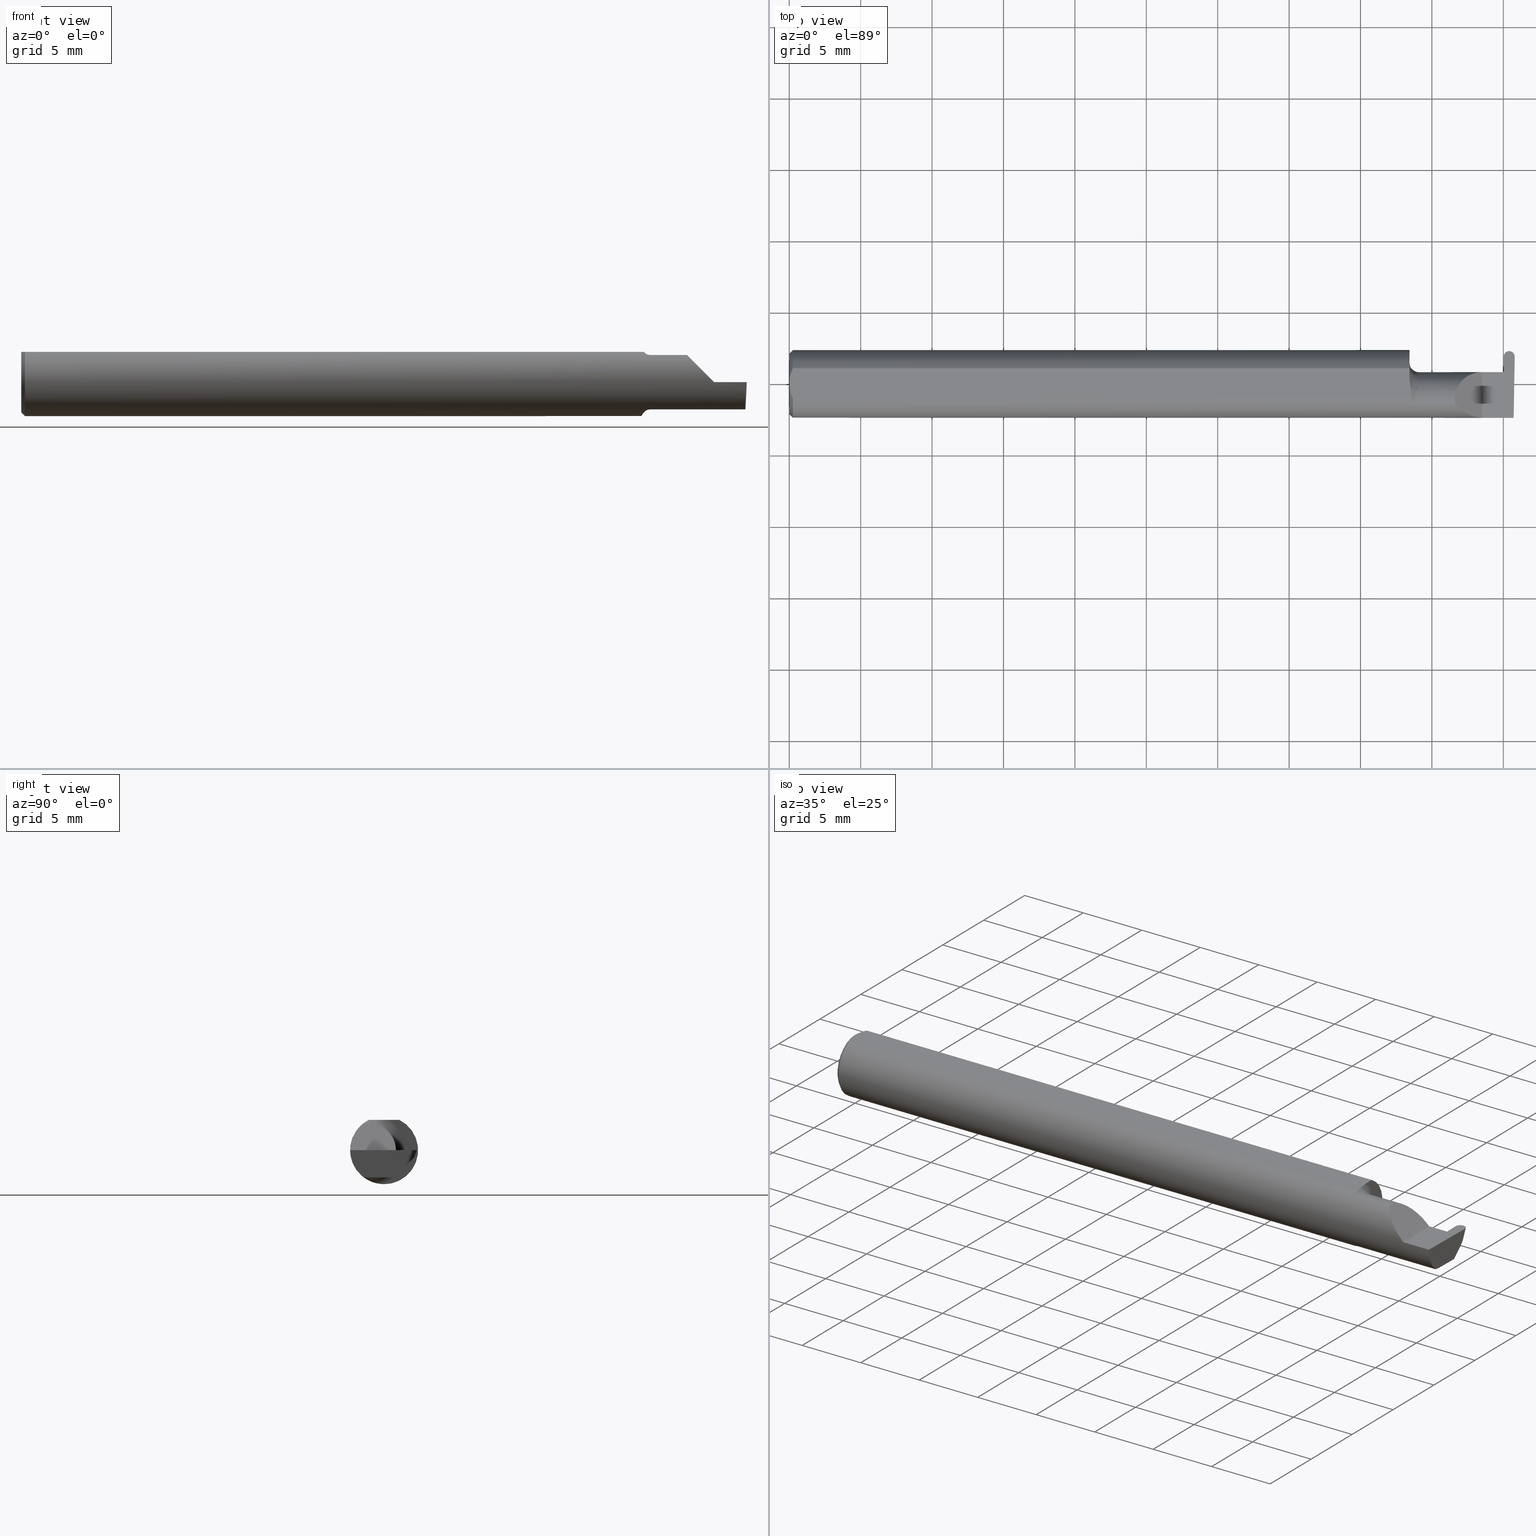
[diagram: canonical four-view strip — front | top / right | iso, engineering-drawing reading convention]
A machine part, canonical four-view strip (front | top / right | iso — engineering-drawing reading convention). The complete STEP part file that produces these views, byte-faithful:
ISO-10303-21;
HEADER;
FILE_DESCRIPTION (( 'STEP AP203' ),
    '1' );
FILE_NAME ('221828-GFR030K-4.STEP',
    '2024-06-17T19:37:32',
    ( '' ),
    ( '' ),
    'SwSTEP 2.0',
    'SolidWorks 2022',
    '' );
FILE_SCHEMA (( 'CONFIG_CONTROL_DESIGN' ));
ENDSEC;

DATA;
#1 = CARTESIAN_POINT ( 'NONE',  ( 1.984528753945016932, 0.09039999999999999425, 0.000000000000000000 ) ) ;
#2 = ORIENTED_EDGE ( 'NONE', *, *, #172, .F. ) ;
#3 = CARTESIAN_POINT ( 'NONE',  ( 1.709999999999999964, 0.04209513035969864037, 0.08359999999999988274 ) ) ;
#4 = CARTESIAN_POINT ( 'NONE',  ( 1.969483699970306922, 0.07409901316683066563, 0.000000000000000000 ) ) ;
#5 = VERTEX_POINT ( 'NONE', #680 ) ;
#6 = ADVANCED_FACE ( 'NONE', ( #462 ), #147, .T. ) ;
#7 = CARTESIAN_POINT ( 'NONE',  ( 1.910000000000000142, 0.03240000000000001906, 3.551475717527338624E-17 ) ) ;
#8 = SECURITY_CLASSIFICATION ( '', '', #171 ) ;
#9 = AXIS2_PLACEMENT_3D ( 'NONE', #264, #501, #282 ) ;
#10 = CARTESIAN_POINT ( 'NONE',  ( 0.01000000000000016674, 0.04209513035969864037, 0.08359999999999988274 ) ) ;
#11 = DIRECTION ( 'NONE',  ( -1.000000000000000000, -0.000000000000000000, -0.000000000000000000 ) ) ;
#12 = LINE ( 'NONE', #328, #589 ) ;
#13 = DIRECTION ( 'NONE',  ( 0.03490480639812536257, 0.000000000000000000, 0.9993906415863165194 ) ) ;
#14 = ORIENTED_EDGE ( 'NONE', *, *, #496, .T. ) ;
#15 = CARTESIAN_POINT ( 'NONE',  ( 0.000000000000000000, -0.04209513035969864037, 0.08359999999999988274 ) ) ;
#16 = CARTESIAN_POINT ( 'NONE',  ( 0.01000000000000016674, -0.04209513035969864037, 0.08359999999999988274 ) ) ;
#17 = EDGE_LOOP ( 'NONE', ( #21, #668, #531, #218 ) ) ;
#18 = CARTESIAN_POINT ( 'NONE',  ( 1.714570820222980574, -0.02392027542784315106, 0.08359999999999992437 ) ) ;
#19 = DIRECTION ( 'NONE',  ( 0.000000000000000000, 0.000000000000000000, 1.000000000000000000 ) ) ;
#20 = VECTOR ( 'NONE', #543, 39.37007874015748143 ) ;
#21 = ORIENTED_EDGE ( 'NONE', *, *, #620, .F. ) ;
#22 = LINE ( 'NONE', #503, #505 ) ;
#23 = DIRECTION ( 'NONE',  ( -0.02596452850600439177, 0.7068683906002057871, 0.7068683906002134476 ) ) ;
#24 = EDGE_CURVE ( 'NONE', #484, #691, #347, .T. ) ;
#25 = PRODUCT_DEFINITION ( 'UNKNOWN', '', #114, #240 ) ;
#26 = EDGE_CURVE ( 'NONE', #207, #250, #613, .T. ) ;
#27 = B_SPLINE_CURVE_WITH_KNOTS ( 'NONE', 3,
 ( #414, #296, #522, #35 ),
 .UNSPECIFIED., .F., .F.,
 ( 4, 4 ),
 ( 0.000000000000000000, 1.000000000000000000 ),
 .UNSPECIFIED. ) ;
#28 = ORIENTED_EDGE ( 'NONE', *, *, #610, .T. ) ;
#29 = DIRECTION ( 'NONE',  ( 0.000000000000000000, -1.000000000000000000, 0.000000000000000000 ) ) ;
#30 = DIRECTION ( 'NONE',  ( 0.000000000000000000, 0.000000000000000000, 1.000000000000000000 ) ) ;
#31 = CARTESIAN_POINT ( 'NONE',  ( 1.716129652885479473, -0.04209513035970119388, 0.08359999999999991049 ) ) ;
#32 = EDGE_LOOP ( 'NONE', ( #276, #62, #189, #657, #96, #672 ) ) ;
#33 = VECTOR ( 'NONE', #679, 39.37007874015748143 ) ;
#34 = CARTESIAN_POINT ( 'NONE',  ( 0.01000000000000016674, 0.000000000000000000, -0.09360000000000001652 ) ) ;
#35 = CARTESIAN_POINT ( 'NONE',  ( 1.964199165186739648, 0.03239999999999999825, 0.000000000000000000 ) ) ;
#36 = CARTESIAN_POINT ( 'NONE',  ( 1.709999999999999964, 0.03239999999999998437, 3.551475717527338624E-17 ) ) ;
#37 = CARTESIAN_POINT ( 'NONE',  ( 1.709999999999999964, 0.03221730376948644947, -0.005231735530814581037 ) ) ;
#38 = VERTEX_POINT ( 'NONE', #403 ) ;
#39 = CARTESIAN_POINT ( 'NONE',  ( 1.972792175482094290, 0.02986403519928995665, -0.07262053034965132436 ) ) ;
#40 = VERTEX_POINT ( 'NONE', #527 ) ;
#41 = ADVANCED_FACE ( 'NONE', ( #200 ), #408, .F. ) ;
#42 = APPROVAL_PERSON_ORGANIZATION ( #319, #625, #428 ) ;
#43 = ORIENTED_EDGE ( 'NONE', *, *, #101, .T. ) ;
#44 = AXIS2_PLACEMENT_3D ( 'NONE', #406, #628, #617 ) ;
#45 =( BOUNDED_CURVE ( )  B_SPLINE_CURVE ( 3, ( #298, #252, #413, #194 ),
 .UNSPECIFIED., .F., .T. ) 
 B_SPLINE_CURVE_WITH_KNOTS ( ( 4, 4 ),
 ( 1.672436806532649367, 3.247686724355375087 ),
 .UNSPECIFIED. ) 
 CURVE ( )  GEOMETRIC_REPRESENTATION_ITEM ( )  RATIONAL_B_SPLINE_CURVE ( ( 1.000000000000000000, 0.8036869647627066238, 0.8036869647627066238, 1.000000000000000000 ) ) 
 REPRESENTATION_ITEM ( '' )  );
#46 = APPROVAL_PERSON_ORGANIZATION ( #108, #592, #678 ) ;
#47 = CARTESIAN_POINT ( 'NONE',  ( 1.984733980000000342, 0.08346613280634004872, -0.01901843274260211006 ) ) ;
#48 = APPROVAL_STATUS ( 'not_yet_approved' ) ;
#49 = ORIENTED_EDGE ( 'NONE', *, *, #213, .F. ) ;
#50 = DIRECTION ( 'NONE',  ( 0.03547001781079536092, 0.000000000000000000, -0.9993707409347653003 ) ) ;
#51 = APPROVAL_STATUS ( 'not_yet_approved' ) ;
#52 = ORIENTED_EDGE ( 'NONE', *, *, #656, .T. ) ;
#53 = CARTESIAN_POINT ( 'NONE',  ( 1.711762116932663558, -0.02818790137206256263, -0.08941930521177116065 ) ) ;
#54 = EDGE_LOOP ( 'NONE', ( #178, #312, #138, #163 ) ) ;
#55 = CONICAL_SURFACE ( 'NONE', #507, 0.08359999999999989662, 0.7853981633974458365 ) ;
#56 = CARTESIAN_POINT ( 'NONE',  ( 1.734999999999999876, -0.04260000000000008225, 0.000000000000000000 ) ) ;
#57 = CARTESIAN_POINT ( 'NONE',  ( 1.854690286057537163, -0.08092595952420827965, 0.05530971394246238931 ) ) ;
#58 = ORIENTED_EDGE ( 'NONE', *, *, #119, .T. ) ;
#59 = PLANE ( 'NONE',  #557 ) ;
#60 = CARTESIAN_POINT ( 'NONE',  ( 1.970563718872777370, 0.07240713412461576015, -0.03007743142432650965 ) ) ;
#61 = ORIENTED_EDGE ( 'NONE', *, *, #351, .F. ) ;
#62 = ORIENTED_EDGE ( 'NONE', *, *, #351, .T. ) ;
#63 = EDGE_CURVE ( 'NONE', #541, #618, #140, .T. ) ;
#64 = CARTESIAN_POINT ( 'NONE',  ( 1.995327814509989528, -0.04259999999999948550, -0.07500000000000002498 ) ) ;
#65 = TOROIDAL_SURFACE ( 'NONE', #222, 0.1000000000000000472, 0.02499999999999993894 ) ;
#66 = LINE ( 'NONE', #553, #169 ) ;
#67 = ADVANCED_FACE ( 'NONE', ( #85 ), #353, .T. ) ;
#68 = EDGE_LOOP ( 'NONE', ( #98, #49, #487 ) ) ;
#69 = B_SPLINE_CURVE_WITH_KNOTS ( 'NONE', 3,
 ( #228, #596, #608, #402, #652, #286 ),
 .UNSPECIFIED., .F., .F.,
 ( 4, 2, 4 ),
 ( 0.001744210492668864416, 0.002295110172257193264, 0.002846009851845522111 ),
 .UNSPECIFIED. ) ;
#70 = FACE_OUTER_BOUND ( 'NONE', #666, .T. ) ;
#71 = DIRECTION ( 'NONE',  ( -0.9992386149554827179, 0.01744177490282298668, 0.03489949670250104552 ) ) ;
#72 = ORIENTED_EDGE ( 'NONE', *, *, #690, .T. ) ;
#73 = DIRECTION ( 'NONE',  ( 1.000000000000000000, 0.000000000000000000, -0.000000000000000000 ) ) ;
#74 = CARTESIAN_POINT ( 'NONE',  ( 1.971325961646301028, 0.05785528259492387498, -0.04462928295401853707 ) ) ;
#75 = B_SPLINE_CURVE_WITH_KNOTS ( 'NONE', 3,
 ( #339, #274, #18, #270, #449, #231 ),
 .UNSPECIFIED., .F., .F.,
 ( 4, 2, 4 ),
 ( 0.009672910729349544143, 0.01035804079918431486, 0.01104317086901908385 ),
 .UNSPECIFIED. ) ;
#76 = VECTOR ( 'NONE', #293, 39.37007874015748143 ) ;
#77 = VERTEX_POINT ( 'NONE', #564 ) ;
#78 = CARTESIAN_POINT ( 'NONE',  ( 0.004072204388638868758, -0.02891446873729324601, 0.08359999999999991049 ) ) ;
#79 = CARTESIAN_POINT ( 'NONE',  ( 1.981547166899400025, 0.1166894773727292917, 0.07222974545083693521 ) ) ;
#80 = VECTOR ( 'NONE', #174, 39.37007874015748854 ) ;
#81 = EDGE_CURVE ( 'NONE', #38, #535, #87, .T. ) ;
#82 = EDGE_CURVE ( 'NONE', #425, #248, #242, .T. ) ;
#83 = ORIENTED_EDGE ( 'NONE', *, *, #656, .F. ) ;
#84 = CARTESIAN_POINT ( 'NONE',  ( 1.970397471987413995, 0.03221730376948542252, -0.005231735530809524318 ) ) ;
#85 = FACE_OUTER_BOUND ( 'NONE', #321, .T. ) ;
#86 = DIRECTION ( 'NONE',  ( -0.01745240643727633684, -0.9998476951563912696, 0.000000000000000000 ) ) ;
#87 = LINE ( 'NONE', #197, #660 ) ;
#88 = CARTESIAN_POINT ( 'NONE',  ( 1.726308147845286634, -0.05549979236676332722, 0.07538081185522389760 ) ) ;
#89 = LINE ( 'NONE', #246, #415 ) ;
#90 = AXIS2_PLACEMENT_3D ( 'NONE', #121, #600, #444 ) ;
#91 = APPROVAL_ROLE ( '' ) ;
#92 = DIRECTION ( 'NONE',  ( -0.03549161113179509497, 0.03487750912278161919, 0.9987611851171729338 ) ) ;
#93 = VERTEX_POINT ( 'NONE', #566 ) ;
#94 = EDGE_CURVE ( 'NONE', #691, #210, #27, .T. ) ;
#95 = CARTESIAN_POINT ( 'NONE',  ( 1.996551145152111628, 0.02748456554894272708, -0.07500000000000002498 ) ) ;
#96 = ORIENTED_EDGE ( 'NONE', *, *, #204, .T. ) ;
#97 = MECHANICAL_CONTEXT ( 'NONE', #602, 'mechanical' ) ;
#98 = ORIENTED_EDGE ( 'NONE', *, *, #217, .F. ) ;
#99 = AXIS2_PLACEMENT_3D ( 'NONE', #257, #299, #693 ) ;
#100 = CARTESIAN_POINT ( 'NONE',  ( 1.995165152206654691, -0.05300374992736034407, -0.07445783144524581454 ) ) ;
#101 = EDGE_CURVE ( 'NONE', #618, #258, #89, .T. ) ;
#102 = EDGE_CURVE ( 'NONE', #345, #570, #624, .T. ) ;
#103 = PERSON_AND_ORGANIZATION ( #423, #137 ) ;
#104 = EDGE_LOOP ( 'NONE', ( #499, #133, #459, #419 ) ) ;
#105 = DIRECTION ( 'NONE',  ( -1.000000000000000000, 0.000000000000000000, 1.224646799147358877E-16 ) ) ;
#106 = DIRECTION ( 'NONE',  ( 0.000000000000000000, 0.000000000000000000, 1.000000000000000000 ) ) ;
#107 = CARTESIAN_POINT ( 'NONE',  ( 1.734999999999999876, -0.05810704225352095881, -0.07337936794867842838 ) ) ;
#108 = PERSON_AND_ORGANIZATION ( #423, #137 ) ;
#109 = ORIENTED_EDGE ( 'NONE', *, *, #221, .F. ) ;
#110 = DIRECTION ( 'NONE',  ( -1.000000000000000000, -0.000000000000000000, -0.000000000000000000 ) ) ;
#111 = ORIENTED_EDGE ( 'NONE', *, *, #101, .F. ) ;
#112 = DIRECTION ( 'NONE',  ( 0.000000000000000000, -1.000000000000000000, 0.000000000000000000 ) ) ;
#113 = CALENDAR_DATE ( 2024, 17, 6 ) ;
#114 = PRODUCT_DEFINITION_FORMATION_WITH_SPECIFIED_SOURCE ( 'ANY', '', #463, .NOT_KNOWN. ) ;
#115 = EDGE_LOOP ( 'NONE', ( #61, #661, #641, #111, #363 ) ) ;
#116 = CIRCLE ( 'NONE', #9, 0.09360000000000001652 ) ;
#117 =( GEOMETRIC_REPRESENTATION_CONTEXT ( 3 ) GLOBAL_UNCERTAINTY_ASSIGNED_CONTEXT ( ( #565 ) ) GLOBAL_UNIT_ASSIGNED_CONTEXT ( ( #192, #451, #606 ) ) REPRESENTATION_CONTEXT ( 'NONE', 'WORKASPACE' ) );
#118 = CARTESIAN_POINT ( 'NONE',  ( 1.858433946715231766, 0.03240000000000000518, 0.05156605328476855654 ) ) ;
#119 = EDGE_CURVE ( 'NONE', #266, #160, #358, .T. ) ;
#120 = CARTESIAN_POINT ( 'NONE',  ( -3.937007874019685528E-05, 0.02748456554894273055, -0.07500000000000002498 ) ) ;
#121 = CARTESIAN_POINT ( 'NONE',  ( 0.000000000000000000, 0.000000000000000000, 0.000000000000000000 ) ) ;
#122 = APPROVAL_DATE_TIME ( #584, #625 ) ;
#123 = LINE ( 'NONE', #120, #20 ) ;
#124 = DIRECTION ( 'NONE',  ( 0.000000000000000000, 0.000000000000000000, -1.000000000000000000 ) ) ;
#125 = ORIENTED_EDGE ( 'NONE', *, *, #323, .T. ) ;
#126 = AXIS2_PLACEMENT_3D ( 'NONE', #609, #343, #556 ) ;
#127 = CYLINDRICAL_SURFACE ( 'NONE', #310, 0.01524999999999999793 ) ;
#128 = FACE_OUTER_BOUND ( 'NONE', #32, .T. ) ;
#129 = ORIENTED_EDGE ( 'NONE', *, *, #546, .T. ) ;
#130 = DIRECTION ( 'NONE',  ( 1.645101957906638708E-16, -1.000000000000000000, 0.000000000000000000 ) ) ;
#131 = DIRECTION ( 'NONE',  ( 7.095197676277282976E-16, -0.9993908270190957621, 0.03489949670250104552 ) ) ;
#132 = CC_DESIGN_DATE_AND_TIME_ASSIGNMENT ( #481, #209, ( #25 ) ) ;
#133 = ORIENTED_EDGE ( 'NONE', *, *, #620, .T. ) ;
#134 = EDGE_CURVE ( 'NONE', #38, #334, #638, .T. ) ;
#135 = DIRECTION ( 'NONE',  ( -0.03876062227022336604, -0.3417631236437465025, -0.9389864650134710500 ) ) ;
#136 = DIRECTION ( 'NONE',  ( -0.03701368837992437266, -0.7066222423871552083, -0.7066222423871628688 ) ) ;
#137 = ORGANIZATION ( 'UNSPECIFIED', 'UNSPECIFIED', '' ) ;
#138 = ORIENTED_EDGE ( 'NONE', *, *, #323, .F. ) ;
#139 = PLANE ( 'NONE',  #141 ) ;
#140 = LINE ( 'NONE', #562, #452 ) ;
#141 = AXIS2_PLACEMENT_3D ( 'NONE', #561, #289, #245 ) ;
#142 =( BOUNDED_CURVE ( )  B_SPLINE_CURVE ( 3, ( #155, #100, #534, #486 ),
 .UNSPECIFIED., .F., .T. ) 
 B_SPLINE_CURVE_WITH_KNOTS ( ( 4, 4 ),
 ( 0.2552020043920822379, 0.4634648172053437154 ),
 .UNSPECIFIED. ) 
 CURVE ( )  GEOMETRIC_REPRESENTATION_ITEM ( )  RATIONAL_B_SPLINE_CURVE ( ( 1.000000000000000000, 0.9963888149483992596, 0.9963888149483992596, 1.000000000000000000 ) ) 
 REPRESENTATION_ITEM ( '' )  );
#143 = CARTESIAN_POINT ( 'NONE',  ( 0.000000000000000000, 0.000000000000000000, 0.08359999999999991049 ) ) ;
#144 = DIRECTION ( 'NONE',  ( 1.000000000000000000, -0.000000000000000000, -0.000000000000000000 ) ) ;
#145 = EDGE_CURVE ( 'NONE', #373, #5, #371, .T. ) ;
#146 = DIRECTION ( 'NONE',  ( 1.000000000000000000, 1.645101957906638708E-16, 0.000000000000000000 ) ) ;
#147 = PLANE ( 'NONE',  #263 ) ;
#148 = VECTOR ( 'NONE', #674, 39.37007874015748143 ) ;
#149 = VERTEX_POINT ( 'NONE', #372 ) ;
#150 = CARTESIAN_POINT ( 'NONE',  ( 1.717870098798738088, -0.04602557371825105603, 0.08162090280442951817 ) ) ;
#151 = ORIENTED_EDGE ( 'NONE', *, *, #442, .F. ) ;
#152 = ADVANCED_FACE ( 'NONE', ( #162 ), #381, .F. ) ;
#153 = CC_DESIGN_PERSON_AND_ORGANIZATION_ASSIGNMENT ( #103, #311, ( #463 ) ) ;
#154 = EDGE_CURVE ( 'NONE', #570, #93, #645, .T. ) ;
#155 = CARTESIAN_POINT ( 'NONE',  ( 1.995113740419715231, -0.05810704225352097962, -0.07337936794867837287 ) ) ;
#156 = ORIENTED_EDGE ( 'NONE', *, *, #516, .F. ) ;
#157 = LINE ( 'NONE', #536, #475 ) ;
#158 = DIRECTION ( 'NONE',  ( -1.000000000000000000, -1.645101957906638708E-16, -0.000000000000000000 ) ) ;
#159 = CARTESIAN_POINT ( 'NONE',  ( 1.970211558952576159, 0.03239999999999999825, 0.000000000000000000 ) ) ;
#160 = VERTEX_POINT ( 'NONE', #580 ) ;
#161 = AXIS2_PLACEMENT_3D ( 'NONE', #417, #411, #467 ) ;
#162 = FACE_OUTER_BOUND ( 'NONE', #54, .T. ) ;
#163 = ORIENTED_EDGE ( 'NONE', *, *, #154, .F. ) ;
#164 = CARTESIAN_POINT ( 'NONE',  ( 1.712856118429613828, -0.03323074941465632010, -0.08766015375840498225 ) ) ;
#165 = EDGE_LOOP ( 'NONE', ( #430, #361, #453, #474, #365, #525, #260, #156, #477, #577 ) ) ;
#166 = DIRECTION ( 'NONE',  ( -0.001239419280281404273, 0.9999992319196288060, 0.000000000000000000 ) ) ;
#167 = AXIS2_PLACEMENT_3D ( 'NONE', #238, #676, #461 ) ;
#168 = EDGE_CURVE ( 'NONE', #210, #40, #214, .T. ) ;
#169 = VECTOR ( 'NONE', #136, 39.37007874015748143 ) ;
#170 = DIRECTION ( 'NONE',  ( 0.000000000000000000, -0.03489949670250104552, -0.9993908270190957621 ) ) ;
#171 = SECURITY_CLASSIFICATION_LEVEL ( 'unclassified' ) ;
#172 = EDGE_CURVE ( 'NONE', #541, #304, #643, .T. ) ;
#173 = DIRECTION ( 'NONE',  ( -0.000000000000000000, 1.000000000000000000, -0.000000000000000000 ) ) ;
#174 = DIRECTION ( 'NONE',  ( -0.03876062227022340073, 0.3417631236437465025, 0.9389864650134709390 ) ) ;
#175 = PLANE ( 'NONE',  #615 ) ;
#176 = FACE_OUTER_BOUND ( 'NONE', #68, .T. ) ;
#177 = B_SPLINE_CURVE_WITH_KNOTS ( 'NONE', 3,
 ( #107, #542, #576, #256, #582, #483, #268, #164, #53, #480, #435, #261 ),
 .UNSPECIFIED., .F., .F.,
 ( 4, 2, 2, 2, 2, 4 ),
 ( 1.968126669309073504E-07, 0.0002104342718631984689, 0.0004206717310594660676, 0.0008411466494520005062, 0.001261621567844535162, 0.001682096486237069600 ),
 .UNSPECIFIED. ) ;
#178 = ORIENTED_EDGE ( 'NONE', *, *, #516, .T. ) ;
#179 = CARTESIAN_POINT ( 'NONE',  ( 1.734999999999999876, -0.04260000000000008225, 0.000000000000000000 ) ) ;
#180 = PLANE ( 'NONE',  #391 ) ;
#181 = ORIENTED_EDGE ( 'NONE', *, *, #386, .T. ) ;
#182 = DIRECTION ( 'NONE',  ( 0.000000000000000000, 0.9396926207859083169, -0.3420201433256689350 ) ) ;
#183 = FACE_OUTER_BOUND ( 'NONE', #17, .T. ) ;
#184 = ORIENTED_EDGE ( 'NONE', *, *, #134, .T. ) ;
#185 = DIRECTION ( 'NONE',  ( 0.03876062227022340767, -0.3417631236437464470, -0.9389864650134710500 ) ) ;
#186 = DIRECTION ( 'NONE',  ( 1.000000000000000000, 0.000000000000000000, -0.000000000000000000 ) ) ;
#187 =( LENGTH_UNIT ( ) NAMED_UNIT ( * ) SI_UNIT ( $, .METRE. ) );
#188 = EDGE_CURVE ( 'NONE', #248, #266, #432, .T. ) ;
#189 = ORIENTED_EDGE ( 'NONE', *, *, #442, .T. ) ;
#190 = CARTESIAN_POINT ( 'NONE',  ( 1.970211558952576159, 0.03239999999999999825, 0.000000000000000000 ) ) ;
#191 = ORIENTED_EDGE ( 'NONE', *, *, #670, .F. ) ;
#192 =( CONVERSION_BASED_UNIT ( 'INCH', #512 ) LENGTH_UNIT ( ) NAMED_UNIT ( #348 ) );
#193 = EDGE_CURVE ( 'NONE', #250, #334, #177, .T. ) ;
#194 = CARTESIAN_POINT ( 'NONE',  ( 1.984939206054983751, 0.09039999999999999425, 0.000000000000000000 ) ) ;
#195 = DIRECTION ( 'NONE',  ( -0.03701368837992446981, 0.7066222423871552083, 0.7066222423871628688 ) ) ;
#196 = DIRECTION ( 'NONE',  ( -1.000000000000000000, -1.645101957906638708E-16, -0.000000000000000000 ) ) ;
#197 = CARTESIAN_POINT ( 'NONE',  ( 1.709999999999999964, 0.09359999999999997489, 0.08359999999999991049 ) ) ;
#198 = CIRCLE ( 'NONE', #684, 0.09360000000000001652 ) ;
#199 = FACE_OUTER_BOUND ( 'NONE', #104, .T. ) ;
#200 = FACE_OUTER_BOUND ( 'NONE', #280, .T. ) ;
#201 = VECTOR ( 'NONE', #275, 39.37007874015748143 ) ;
#202 = DATE_AND_TIME ( #634, #380 ) ;
#203 = ORIENTED_EDGE ( 'NONE', *, *, #249, .T. ) ;
#204 = EDGE_CURVE ( 'NONE', #207, #345, #142, .T. ) ;
#205 = CYLINDRICAL_SURFACE ( 'NONE', #465, 0.07500000000000006661 ) ;
#206 = MANIFOLD_SOLID_BREP ( 'Radii', #426 ) ;
#207 = VERTEX_POINT ( 'NONE', #313 ) ;
#208 = DIRECTION ( 'NONE',  ( -0.01745240643727647215, 0.9998476951563912696, -0.000000000000000000 ) ) ;
#209 = DATE_TIME_ROLE ( 'creation_date' ) ;
#210 = VERTEX_POINT ( 'NONE', #692 ) ;
#211 = CARTESIAN_POINT ( 'NONE',  ( 1.836620632051321200, -0.05810704225352119473, 0.07337936794867828960 ) ) ;
#212 = ORIENTED_EDGE ( 'NONE', *, *, #269, .F. ) ;
#213 = EDGE_CURVE ( 'NONE', #698, #77, #586, .T. ) ;
#214 = LINE ( 'NONE', #159, #320 ) ;
#215 = PERSON_AND_ORGANIZATION_ROLE ( 'classification_officer' ) ;
#216 = ORIENTED_EDGE ( 'NONE', *, *, #102, .T. ) ;
#217 = EDGE_CURVE ( 'NONE', #77, #288, #669, .T. ) ;
#218 = ORIENTED_EDGE ( 'NONE', *, *, #366, .F. ) ;
#219 = CARTESIAN_POINT ( 'NONE',  ( 1.836620632051321200, -0.05810704225352119473, 0.07337936794867828960 ) ) ;
#220 = CC_DESIGN_APPROVAL ( #571, ( #114 ) ) ;
#221 = EDGE_CURVE ( 'NONE', #334, #535, #116, .T. ) ;
#222 = AXIS2_PLACEMENT_3D ( 'NONE', #179, #443, #130 ) ;
#223 = ADVANCED_FACE ( 'NONE', ( #183 ), #55, .T. ) ;
#224 = DIRECTION ( 'NONE',  ( 0.03876062227022335910, 0.3417631236437464470, 0.9389864650134710500 ) ) ;
#225 = CYLINDRICAL_SURFACE ( 'NONE', #251, 0.01524999999999999793 ) ;
#226 = CARTESIAN_POINT ( 'NONE',  ( 1.709999999999999964, -0.006757276995305152960, -0.09335576686851605743 ) ) ;
#227 = ORIENTED_EDGE ( 'NONE', *, *, #168, .T. ) ;
#228 = CARTESIAN_POINT ( 'NONE',  ( 0.000000000000000000, 0.000000000000000000, 0.08359999999999991049 ) ) ;
#229 = CYLINDRICAL_SURFACE ( 'NONE', #253, 0.09360000000000001652 ) ;
#230 = ORIENTED_EDGE ( 'NONE', *, *, #82, .F. ) ;
#231 = CARTESIAN_POINT ( 'NONE',  ( 1.709999999999999964, 0.01227294415283377085, 0.08359999999999991049 ) ) ;
#232 = LINE ( 'NONE', #79, #80 ) ;
#233 = ORIENTED_EDGE ( 'NONE', *, *, #26, .F. ) ;
#234 = FACE_OUTER_BOUND ( 'NONE', #115, .T. ) ;
#235 = CARTESIAN_POINT ( 'NONE',  ( 1.999994460970140109, 0.07418895767924950368, 0.0002471205168746652800 ) ) ;
#236 = ADVANCED_FACE ( 'NONE', ( #446 ), #180, .F. ) ;
#237 = VERTEX_POINT ( 'NONE', #16 ) ;
#238 = CARTESIAN_POINT ( 'NONE',  ( 0.000000000000000000, 0.000000000000000000, 0.000000000000000000 ) ) ;
#239 = DIRECTION ( 'NONE',  ( 1.000000000000000000, 1.645101957906638708E-16, 0.000000000000000000 ) ) ;
#240 = DESIGN_CONTEXT ( 'detailed design', #429, 'design' ) ;
#241 = LINE ( 'NONE', #521, #495 ) ;
#242 = LINE ( 'NONE', #677, #601 ) ;
#243 = AXIS2_PLACEMENT_3D ( 'NONE', #515, #239, #356 ) ;
#244 = CALENDAR_DATE ( 2024, 17, 6 ) ;
#245 = DIRECTION ( 'NONE',  ( 0.03490480639812536257, 0.000000000000000000, -0.9993906415863165194 ) ) ;
#246 = CARTESIAN_POINT ( 'NONE',  ( 1.981957002351929287, 0.06410508538814199686, -0.07224468414256721149 ) ) ;
#247 = FACE_OUTER_BOUND ( 'NONE', #482, .T. ) ;
#248 = VERTEX_POINT ( 'NONE', #74 ) ;
#249 = EDGE_CURVE ( 'NONE', #535, #631, #450, .T. ) ;
#250 = VERTEX_POINT ( 'NONE', #504 ) ;
#251 = AXIS2_PLACEMENT_3D ( 'NONE', #500, #135, #182 ) ;
#252 = CARTESIAN_POINT ( 'NONE',  ( 2.000150782537319483, 0.08363908123938845751, -1.889248031255481802E-18 ) ) ;
#253 = AXIS2_PLACEMENT_3D ( 'NONE', #650, #11, #19 ) ;
#254 = ORIENTED_EDGE ( 'NONE', *, *, #399, .T. ) ;
#255 = DIRECTION ( 'NONE',  ( -1.224646799147358877E-16, 0.000000000000000000, -1.000000000000000000 ) ) ;
#256 = CARTESIAN_POINT ( 'NONE',  ( 1.725047675231717204, -0.05464443219068141483, -0.07601042893068211959 ) ) ;
#257 = CARTESIAN_POINT ( 'NONE',  ( 0.000000000000000000, 0.000000000000000000, 0.000000000000000000 ) ) ;
#258 = VERTEX_POINT ( 'NONE', #498 ) ;
#259 = CARTESIAN_POINT ( 'NONE',  ( 0.000000000000000000, 0.000000000000000000, 0.000000000000000000 ) ) ;
#260 = ORIENTED_EDGE ( 'NONE', *, *, #24, .F. ) ;
#261 = CARTESIAN_POINT ( 'NONE',  ( 1.709999999999999964, -0.006757276995305152960, -0.09335576686851605743 ) ) ;
#262 = ORIENTED_EDGE ( 'NONE', *, *, #401, .F. ) ;
#263 = AXIS2_PLACEMENT_3D ( 'NONE', #569, #30, #186 ) ;
#264 = CARTESIAN_POINT ( 'NONE',  ( 1.709999999999999964, 0.000000000000000000, 0.000000000000000000 ) ) ;
#265 = SHAPE_DEFINITION_REPRESENTATION ( #671, #640 ) ;
#266 = VERTEX_POINT ( 'NONE', #544 ) ;
#267 = ORIENTED_EDGE ( 'NONE', *, *, #188, .T. ) ;
#268 = CARTESIAN_POINT ( 'NONE',  ( 1.716206319820904991, -0.04283575577410217439, -0.08338874798717361980 ) ) ;
#269 = EDGE_CURVE ( 'NONE', #258, #541, #232, .T. ) ;
#270 = CARTESIAN_POINT ( 'NONE',  ( 1.711463898467977307, -0.005727447913487191365, 0.08359999999999991049 ) ) ;
#271 = CARTESIAN_POINT ( 'NONE',  ( 1.999997674911211609, 0.07486755121428030624, 0.000000000000000000 ) ) ;
#272 = CC_DESIGN_APPROVAL ( #592, ( #25 ) ) ;
#273 = VECTOR ( 'NONE', #146, 39.37007874015748143 ) ;
#274 = CARTESIAN_POINT ( 'NONE',  ( 1.716082007218903582, -0.03301619840524120525, 0.08359999999999991049 ) ) ;
#275 = DIRECTION ( 'NONE',  ( -1.000000000000000000, -0.000000000000000000, -0.000000000000000000 ) ) ;
#276 = ORIENTED_EDGE ( 'NONE', *, *, #324, .F. ) ;
#277 = CARTESIAN_POINT ( 'NONE',  ( 1.972966441847108232, -0.04260000000000003367, -0.07500000000000003886 ) ) ;
#278 = DIRECTION ( 'NONE',  ( -0.01745240643727633684, -0.9998476951563912696, 0.000000000000000000 ) ) ;
#279 = EDGE_CURVE ( 'NONE', #258, #266, #662, .T. ) ;
#280 = EDGE_LOOP ( 'NONE', ( #327, #267, #58, #648, #642, #125 ) ) ;
#281 = CARTESIAN_POINT ( 'NONE',  ( 1.984939206054983751, 0.09039999999999999425, 0.000000000000000000 ) ) ;
#282 = DIRECTION ( 'NONE',  ( 0.000000000000000000, 1.000000000000000000, 0.000000000000000000 ) ) ;
#283 = AXIS2_PLACEMENT_3D ( 'NONE', #306, #255, #105 ) ;
#284 = VERTEX_POINT ( 'NONE', #340 ) ;
#285 = ADVANCED_FACE ( 'NONE', ( #594 ), #551, .F. ) ;
#286 = CARTESIAN_POINT ( 'NONE',  ( 0.01000000000000016674, 0.04209513035969864037, 0.08359999999999988274 ) ) ;
#287 = CARTESIAN_POINT ( 'NONE',  ( 1.984733980000000342, 0.08346613280634004872, -0.01901843274260211006 ) ) ;
#288 = VERTEX_POINT ( 'NONE', #597 ) ;
#289 = DIRECTION ( 'NONE',  ( 0.9992386149554827179, 0.01744177490282312198, 0.03489949670250104552 ) ) ;
#290 = ORIENTED_EDGE ( 'NONE', *, *, #366, .T. ) ;
#291 = CARTESIAN_POINT ( 'NONE',  ( 2.115884466375952844, -0.04259999999999948550, -0.07500000000000002498 ) ) ;
#292 = ADVANCED_FACE ( 'NONE', ( #128 ), #494, .F. ) ;
#293 = DIRECTION ( 'NONE',  ( -0.03549161113179509497, 0.03487750912278161919, 0.9987611851171729338 ) ) ;
#294 = DIRECTION ( 'NONE',  ( -1.645101957906638708E-16, 1.000000000000000000, 0.000000000000000000 ) ) ;
#295 = CARTESIAN_POINT ( 'NONE',  ( 2.999519565323742037E-32, -0.09359999999999998876, 2.449293598294716768E-16 ) ) ;
#296 = CARTESIAN_POINT ( 'NONE',  ( 1.964077367699730736, 0.03227820251299117621, -0.003487823687207102126 ) ) ;
#297 = CC_DESIGN_DATE_AND_TIME_ASSIGNMENT ( #651, #385, ( #8 ) ) ;
#298 = CARTESIAN_POINT ( 'NONE',  ( 1.999984260029693539, 0.07409901316683065176, 0.000000000000000000 ) ) ;
#299 = DIRECTION ( 'NONE',  ( 0.000000000000000000, 0.000000000000000000, 1.000000000000000000 ) ) ;
#300 = ORIENTED_EDGE ( 'NONE', *, *, #665, .F. ) ;
#301 = CARTESIAN_POINT ( 'NONE',  ( 1.732603832840145408, -0.05810704225352093799, 0.07337936794867844226 ) ) ;
#302 = ORIENTED_EDGE ( 'NONE', *, *, #530, .T. ) ;
#303 = PERSON_AND_ORGANIZATION ( #423, #137 ) ;
#304 = VERTEX_POINT ( 'NONE', #329 ) ;
#305 = VECTOR ( 'NONE', #663, 39.37007874015748143 ) ;
#306 = CARTESIAN_POINT ( 'NONE',  ( 2.000000000000000000, -0.2500000000000000555, 0.000000000000000000 ) ) ;
#307 = EDGE_CURVE ( 'NONE', #392, #345, #664, .T. ) ;
#308 = VECTOR ( 'NONE', #472, 39.37007874015748143 ) ;
#309 = DIRECTION ( 'NONE',  ( -1.000000000000000000, -1.645101957906638708E-16, -0.000000000000000000 ) ) ;
#310 = AXIS2_PLACEMENT_3D ( 'NONE', #447, #354, #464 ) ;
#311 = PERSON_AND_ORGANIZATION_ROLE ( 'design_owner' ) ;
#312 = ORIENTED_EDGE ( 'NONE', *, *, #379, .F. ) ;
#313 = CARTESIAN_POINT ( 'NONE',  ( 1.995113740419715231, -0.05810704225352097962, -0.07337936794867837287 ) ) ;
#314 = PERSON_AND_ORGANIZATION_ROLE ( 'creator' ) ;
#315 = ORIENTED_EDGE ( 'NONE', *, *, #154, .T. ) ;
#316 = CARTESIAN_POINT ( 'NONE',  ( 1.976063894922528208, 0.08291310012426172937, -0.01957146542468043635 ) ) ;
#317 = PERSON_AND_ORGANIZATION_ROLE ( 'creator' ) ;
#318 = ORIENTED_EDGE ( 'NONE', *, *, #188, .F. ) ;
#319 = PERSON_AND_ORGANIZATION ( #423, #137 ) ;
#320 = VECTOR ( 'NONE', #427, 39.37007874015748143 ) ;
#321 = EDGE_LOOP ( 'NONE', ( #611, #436, #184 ) ) ;
#322 = B_SPLINE_CURVE_WITH_KNOTS ( 'NONE', 3,
 ( #31, #150, #362, #468, #88, #346, #301, #526 ),
 .UNSPECIFIED., .F., .F.,
 ( 4, 2, 2, 4 ),
 ( 4.741820243502701581E-07, 0.0003579866703973726767, 0.0005367429145838903837, 0.0007154991587704082534 ),
 .UNSPECIFIED. ) ;
#323 = EDGE_CURVE ( 'NONE', #93, #425, #659, .T. ) ;
#324 = EDGE_CURVE ( 'NONE', #160, #392, #66, .T. ) ;
#325 = CARTESIAN_POINT ( 'NONE',  ( 1.993404065077472476, 0.08291310012426146570, -0.01957146542468068962 ) ) ;
#326 = COORDINATED_UNIVERSAL_TIME_OFFSET ( 8, 0, .BEHIND. ) ;
#327 = ORIENTED_EDGE ( 'NONE', *, *, #82, .T. ) ;
#328 = CARTESIAN_POINT ( 'NONE',  ( 1.969473499029860131, 0.07418895767924951756, 0.0002471205168746623527 ) ) ;
#329 = CARTESIAN_POINT ( 'NONE',  ( 1.969483699970306922, 0.07409901316683066563, 0.000000000000000000 ) ) ;
#330 = CARTESIAN_POINT ( 'NONE',  ( 1.995346537079453642, -0.08092595952420821026, -0.05530971394246255585 ) ) ;
#331 = CARTESIAN_POINT ( 'NONE',  ( 0.000000000000000000, 0.000000000000000000, 0.000000000000000000 ) ) ;
#332 = VECTOR ( 'NONE', #393, 39.37007874015748143 ) ;
#333 = AXIS2_PLACEMENT_3D ( 'NONE', #639, #309, #112 ) ;
#334 = VERTEX_POINT ( 'NONE', #226 ) ;
#335 = CARTESIAN_POINT ( 'NONE',  ( 0.000000000000000000, 0.000000000000000000, -0.08359999999999989662 ) ) ;
#336 = CARTESIAN_POINT ( 'NONE',  ( 1.984733980000000342, 0.08517697538907405275, -0.01433940395293339595 ) ) ;
#337 = ADVANCED_FACE ( 'NONE', ( #655 ), #229, .T. ) ;
#338 = EDGE_LOOP ( 'NONE', ( #318, #83, #2, #212, #616 ) ) ;
#339 = CARTESIAN_POINT ( 'NONE',  ( 1.716129652885479473, -0.04209513035970119388, 0.08359999999999991049 ) ) ;
#340 = CARTESIAN_POINT ( 'NONE',  ( 1.997057062866469668, -0.09360000000000001652, 0.000000000000000000 ) ) ;
#341 = EDGE_LOOP ( 'NONE', ( #302, #52, #230, #581, #14 ) ) ;
#342 = CARTESIAN_POINT ( 'NONE',  ( 0.01000000000000016674, -0.04209513035969864037, 0.08359999999999988274 ) ) ;
#343 = DIRECTION ( 'NONE',  ( -0.7071067811865442421, 0.000000000000000000, -0.7071067811865509034 ) ) ;
#344 = LOCAL_TIME ( 12, 37, 32.00000000000000000, #439 ) ;
#345 = VERTEX_POINT ( 'NONE', #64 ) ;
#346 = CARTESIAN_POINT ( 'NONE',  ( 1.730292432600754049, -0.05747478081012616369, 0.07388601572377859195 ) ) ;
#347 = LINE ( 'NONE', #37, #308 ) ;
#348 = DIMENSIONAL_EXPONENTS ( 1.000000000000000000, 0.000000000000000000, 0.000000000000000000, 0.000000000000000000, 0.000000000000000000, 0.000000000000000000, 0.000000000000000000 ) ;
#349 = ADVANCED_FACE ( 'NONE', ( #176 ), #390, .F. ) ;
#350 = CC_DESIGN_PERSON_AND_ORGANIZATION_ASSIGNMENT ( #303, #314, ( #25 ) ) ;
#351 = EDGE_CURVE ( 'NONE', #160, #395, #511, .T. ) ;
#352 = DIRECTION ( 'NONE',  ( -1.000000000000000000, -0.000000000000000000, -0.000000000000000000 ) ) ;
#353 = PLANE ( 'NONE',  #243 ) ;
#354 = DIRECTION ( 'NONE',  ( -0.03876062227022340767, 0.3417631236437465025, 0.9389864650134710500 ) ) ;
#355 = DIRECTION ( 'NONE',  ( -1.000000000000000000, -0.000000000000000000, -0.000000000000000000 ) ) ;
#356 = DIRECTION ( 'NONE',  ( -1.645101957906638708E-16, 1.000000000000000000, 0.000000000000000000 ) ) ;
#357 = B_SPLINE_CURVE_WITH_KNOTS ( 'NONE', 3,
 ( #342, #78, #458, #667 ),
 .UNSPECIFIED., .F., .F.,
 ( 4, 4 ),
 ( 0.0006429768761302093617, 0.001744210492668864416 ),
 .UNSPECIFIED. ) ;
#358 =( BOUNDED_CURVE ( )  B_SPLINE_CURVE ( 3, ( #47, #325, #539, #376 ),
 .UNSPECIFIED., .F., .T. ) 
 B_SPLINE_CURVE_WITH_KNOTS ( ( 4, 4 ),
 ( 3.161533306497564144, 4.698770164224574053 ),
 .UNSPECIFIED. ) 
 CURVE ( )  GEOMETRIC_REPRESENTATION_ITEM ( )  RATIONAL_B_SPLINE_CURVE ( ( 1.000000000000000000, 0.8125811630039345701, 0.8125811630039345701, 1.000000000000000000 ) ) 
 REPRESENTATION_ITEM ( '' )  );
#359 = CARTESIAN_POINT ( 'NONE',  ( 1.972966441847108232, -0.04260000000000003367, -0.07500000000000003886 ) ) ;
#360 = ORIENTED_EDGE ( 'NONE', *, *, #81, .T. ) ;
#361 = ORIENTED_EDGE ( 'NONE', *, *, #546, .F. ) ;
#362 = CARTESIAN_POINT ( 'NONE',  ( 1.720033121973953527, -0.04963861219531608832, 0.07943694244057659948 ) ) ;
#363 = ORIENTED_EDGE ( 'NONE', *, *, #386, .F. ) ;
#364 = APPROVAL_DATE_TIME ( #574, #592 ) ;
#365 = ORIENTED_EDGE ( 'NONE', *, *, #418, .T. ) ;
#366 = EDGE_CURVE ( 'NONE', #420, #631, #558, .T. ) ;
#367 = DIRECTION ( 'NONE',  ( 0.9993699743034455407, 0.001238639365660605890, 0.03546999060124694098 ) ) ;
#368 = ORIENTED_EDGE ( 'NONE', *, *, #647, .F. ) ;
#369 = CIRCLE ( 'NONE', #636, 0.08359999999999989662 ) ;
#370 = DIRECTION ( 'NONE',  ( 0.000000000000000000, -1.000000000000000000, 0.000000000000000000 ) ) ;
#371 = CIRCLE ( 'NONE', #699, 0.08359999999999989662 ) ;
#372 = CARTESIAN_POINT ( 'NONE',  ( 1.716129652885479473, -0.04209513035970119388, 0.08359999999999991049 ) ) ;
#373 = VERTEX_POINT ( 'NONE', #143 ) ;
#374 = CARTESIAN_POINT ( 'NONE',  ( 1.984733980000000342, 0.08346613280634004872, -0.01901843274260211006 ) ) ;
#375 = ORIENTED_EDGE ( 'NONE', *, *, #269, .T. ) ;
#376 = CARTESIAN_POINT ( 'NONE',  ( 1.998141998353699433, 0.05785528259492388886, -0.04462928295401852319 ) ) ;
#377 = PERSON_AND_ORGANIZATION ( #423, #137 ) ;
#378 = ORIENTED_EDGE ( 'NONE', *, *, #399, .F. ) ;
#379 = EDGE_CURVE ( 'NONE', #425, #484, #241, .T. ) ;
#380 = LOCAL_TIME ( 12, 37, 32.00000000000000000, #523 ) ;
#381 = PLANE ( 'NONE',  #626 ) ;
#382 = VECTOR ( 'NONE', #278, 39.37007874015748143 ) ;
#383 = CC_DESIGN_APPROVAL ( #625, ( #8 ) ) ;
#384 = CARTESIAN_POINT ( 'NONE',  ( 0.000000000000000000, 0.04209513035969864037, 0.08359999999999988274 ) ) ;
#385 = DATE_TIME_ROLE ( 'classification_date' ) ;
#386 = EDGE_CURVE ( 'NONE', #395, #618, #45, .T. ) ;
#387 = CARTESIAN_POINT ( 'NONE',  ( 1.734999999999999876, -0.05810704225352093799, 0.07337936794867844226 ) ) ;
#388 = CARTESIAN_POINT ( 'NONE',  ( 1.984733980000000342, 0.08688529186597530873, -0.009656581234206245562 ) ) ;
#389 = DIRECTION ( 'NONE',  ( 1.000000000000000000, 0.000000000000000000, 0.000000000000000000 ) ) ;
#390 = PLANE ( 'NONE',  #126 ) ;
#391 = AXIS2_PLACEMENT_3D ( 'NONE', #397, #131, #170 ) ;
#392 = VERTEX_POINT ( 'NONE', #95 ) ;
#393 = DIRECTION ( 'NONE',  ( 1.000000000000000000, 0.000000000000000000, 0.000000000000000000 ) ) ;
#394 = CARTESIAN_POINT ( 'NONE',  ( 1.969493928509964853, 0.1196567895122383207, 0.01717222396329657827 ) ) ;
#395 = VERTEX_POINT ( 'NONE', #518 ) ;
#396 = FACE_OUTER_BOUND ( 'NONE', #554, .T. ) ;
#397 = CARTESIAN_POINT ( 'NONE',  ( 1.970211558952576159, 0.03239999999999999825, 0.000000000000000000 ) ) ;
#398 = PRODUCT_RELATED_PRODUCT_CATEGORY ( 'detail', '', ( #463 ) ) ;
#399 = EDGE_CURVE ( 'NONE', #149, #686, #322, .T. ) ;
#400 = ORIENTED_EDGE ( 'NONE', *, *, #213, .T. ) ;
#401 = EDGE_CURVE ( 'NONE', #284, #698, #524, .T. ) ;
#402 = CARTESIAN_POINT ( 'NONE',  ( 0.004492168231814808177, 0.02859366993844194779, 0.08359999999999991049 ) ) ;
#403 = CARTESIAN_POINT ( 'NONE',  ( 1.709999999999999964, 0.01227294415283377085, 0.08359999999999991049 ) ) ;
#404 = VECTOR ( 'NONE', #23, 39.37007874015748143 ) ;
#405 = ORIENTED_EDGE ( 'NONE', *, *, #249, .F. ) ;
#406 = CARTESIAN_POINT ( 'NONE',  ( 0.01000000000000016674, 0.000000000000000000, 0.000000000000000000 ) ) ;
#407 = EDGE_LOOP ( 'NONE', ( #552, #28, #360, #203, #191, #300 ) ) ;
#408 = PLANE ( 'NONE',  #161 ) ;
#409 = LINE ( 'NONE', #36, #273 ) ;
#410 = EDGE_LOOP ( 'NONE', ( #538, #573, #683, #227 ) ) ;
#411 = DIRECTION ( 'NONE',  ( 0.000000000000000000, -0.7071067811865513475, 0.7071067811865436870 ) ) ;
#412 = COORDINATED_UNIVERSAL_TIME_OFFSET ( 8, 0, .BEHIND. ) ;
#413 = CARTESIAN_POINT ( 'NONE',  ( 1.993910768437985759, 0.09039999999999996649, -1.125066701917155339E-18 ) ) ;
#414 = CARTESIAN_POINT ( 'NONE',  ( 1.964016468956226280, 0.03221730376948676866, -0.005231735530810645816 ) ) ;
#415 = VECTOR ( 'NONE', #469, 39.37007874015748854 ) ;
#416 = CARTESIAN_POINT ( 'NONE',  ( 1.972914956890062355, -0.001060451341131608870, -0.07500000000000006661 ) ) ;
#417 = CARTESIAN_POINT ( 'NONE',  ( -3.937007874019685528E-05, 0.08348456554894213844, -0.01899999999999999953 ) ) ;
#418 = EDGE_CURVE ( 'NONE', #288, #210, #409, .T. ) ;
#419 = ORIENTED_EDGE ( 'NONE', *, *, #665, .T. ) ;
#420 = VERTEX_POINT ( 'NONE', #34 ) ;
#421 = EDGE_CURVE ( 'NONE', #686, #77, #612, .T. ) ;
#422 = CARTESIAN_POINT ( 'NONE',  ( 1.910000000000000142, -0.09360000000000005815, 1.102182119232621301E-17 ) ) ;
#423 = PERSON ( 'UNSPECIFIED', 'UNSPECIFIED', 'UNSPECIFIED', ('UNSPECIFIED'), ('UNSPECIFIED'), ('UNSPECIFIED') ) ;
#424 = APPROVAL_STATUS ( 'not_yet_approved' ) ;
#425 = VERTEX_POINT ( 'NONE', #39 ) ;
#426 = CLOSED_SHELL ( 'NONE', ( #490, #236, #337, #349, #529, #6, #223, #285, #479, #646, #67, #560, #627, #41, #478, #292, #152, #637, #694 ) ) ;
#427 = DIRECTION ( 'NONE',  ( 1.000000000000000000, 7.099522513569870101E-16, -0.000000000000000000 ) ) ;
#428 = APPROVAL_ROLE ( '' ) ;
#429 = APPLICATION_CONTEXT ( 'configuration controlled 3d designs of mechanical parts and assemblies' ) ;
#430 = ORIENTED_EDGE ( 'NONE', *, *, #26, .T. ) ;
#431 = CARTESIAN_POINT ( 'NONE',  ( 1.975557191562014703, 0.09039999999999998037, 1.125066701917154376E-18 ) ) ;
#432 =( BOUNDED_CURVE ( )  B_SPLINE_CURVE ( 3, ( #438, #60, #316, #374 ),
 .UNSPECIFIED., .F., .T. ) 
 B_SPLINE_CURVE_WITH_KNOTS ( ( 4, 4 ),
 ( 4.726007796544804407, 6.263244654271833411 ),
 .UNSPECIFIED. ) 
 CURVE ( )  GEOMETRIC_REPRESENTATION_ITEM ( )  RATIONAL_B_SPLINE_CURVE ( ( 1.000000000000000000, 0.8125811630039301292, 0.8125811630039301292, 1.000000000000000000 ) ) 
 REPRESENTATION_ITEM ( '' )  );
#433 = EDGE_LOOP ( 'NONE', ( #448, #460 ) ) ;
#434 = CARTESIAN_POINT ( 'NONE',  ( 1.984528753945016932, 0.09039999999999999425, 0.000000000000000000 ) ) ;
#435 = CARTESIAN_POINT ( 'NONE',  ( 1.709999999999999742, -0.01220003991882275506, -0.09296180880970877913 ) ) ;
#436 = ORIENTED_EDGE ( 'NONE', *, *, #81, .F. ) ;
#437 = AXIS2_PLACEMENT_3D ( 'NONE', #56, #158, #370 ) ;
#438 = CARTESIAN_POINT ( 'NONE',  ( 1.971325961646301028, 0.05785528259492387498, -0.04462928295401853707 ) ) ;
#439 = COORDINATED_UNIVERSAL_TIME_OFFSET ( 8, 0, .BEHIND. ) ;
#440 = VECTOR ( 'NONE', #166, 39.37007874015748854 ) ;
#441 = LOCAL_TIME ( 12, 37, 32.00000000000000000, #470 ) ;
#442 = EDGE_CURVE ( 'NONE', #395, #284, #572, .T. ) ;
#443 = DIRECTION ( 'NONE',  ( -1.000000000000000000, -1.645101957906638708E-16, -0.000000000000000000 ) ) ;
#444 = DIRECTION ( 'NONE',  ( 0.000000000000000000, 0.000000000000000000, -1.000000000000000000 ) ) ;
#445 = DIRECTION ( 'NONE',  ( 0.000000000000000000, 0.000000000000000000, -1.000000000000000000 ) ) ;
#446 = FACE_OUTER_BOUND ( 'NONE', #410, .T. ) ;
#447 = CARTESIAN_POINT ( 'NONE',  ( 1.981547166899399359, 0.1023591649057441905, 0.07744555263655338029 ) ) ;
#448 = ORIENTED_EDGE ( 'NONE', *, *, #145, .T. ) ;
#449 = CARTESIAN_POINT ( 'NONE',  ( 1.709999999999999964, 0.003280657920457339012, 0.08359999999999991049 ) ) ;
#450 = LINE ( 'NONE', #384, #201 ) ;
#451 =( NAMED_UNIT ( * ) PLANE_ANGLE_UNIT ( ) SI_UNIT ( $, .RADIAN. ) );
#452 = VECTOR ( 'NONE', #144, 39.37007874015748143 ) ;
#453 = ORIENTED_EDGE ( 'NONE', *, *, #421, .T. ) ;
#454 = LINE ( 'NONE', #335, #305 ) ;
#455 = CARTESIAN_POINT ( 'NONE',  ( 1.984733980000000564, 0.08859046512939580675, -0.004971656196700772502 ) ) ;
#456 = CC_DESIGN_PERSON_AND_ORGANIZATION_ASSIGNMENT ( #377, #653, ( #114 ) ) ;
#457 = ORIENTED_EDGE ( 'NONE', *, *, #63, .F. ) ;
#458 = CARTESIAN_POINT ( 'NONE',  ( 2.387527623501553705E-17, -0.01462709520273675068, 0.08359999999999991049 ) ) ;
#459 = ORIENTED_EDGE ( 'NONE', *, *, #690, .F. ) ;
#460 = ORIENTED_EDGE ( 'NONE', *, *, #506, .T. ) ;
#461 = DIRECTION ( 'NONE',  ( 0.000000000000000000, 0.000000000000000000, -1.000000000000000000 ) ) ;
#462 = FACE_OUTER_BOUND ( 'NONE', #407, .T. ) ;
#463 = PRODUCT ( '221828-GFR030K-4', '221828-GFR030K-4', '', ( #97 ) ) ;
#464 = DIRECTION ( 'NONE',  ( 0.000000000000000000, -0.9396926207859083169, 0.3420201433256689350 ) ) ;
#465 = AXIS2_PLACEMENT_3D ( 'NONE', #514, #196, #29 ) ;
#466 = CARTESIAN_POINT ( 'NONE',  ( 1.852233979999999836, -0.05810704225352100738, 0.07337936794867837287 ) ) ;
#467 = DIRECTION ( 'NONE',  ( 0.000000000000000000, -0.7071067811865436870, -0.7071067811865513475 ) ) ;
#468 = CARTESIAN_POINT ( 'NONE',  ( 1.724565501274438528, -0.05415466354550831085, 0.07636456853488582386 ) ) ;
#469 = DIRECTION ( 'NONE',  ( -0.03876062227022335910, -0.3417631236437465025, -0.9389864650134709390 ) ) ;
#470 = COORDINATED_UNIVERSAL_TIME_OFFSET ( 8, 0, .BEHIND. ) ;
#471 = CARTESIAN_POINT ( 'NONE',  ( 1.970397471987413995, 0.03221730376948542252, -0.005231735530809524318 ) ) ;
#472 = DIRECTION ( 'NONE',  ( -1.000000000000000000, -1.645101957906638708E-16, -0.000000000000000000 ) ) ;
#473 = APPLICATION_PROTOCOL_DEFINITION ( 'international standard', 'config_control_design', 1994, #602 ) ;
#474 = ORIENTED_EDGE ( 'NONE', *, *, #217, .T. ) ;
#475 = VECTOR ( 'NONE', #208, 39.37007874015748143 ) ;
#476 = FACE_OUTER_BOUND ( 'NONE', #341, .T. ) ;
#477 = ORIENTED_EDGE ( 'NONE', *, *, #102, .F. ) ;
#478 = ADVANCED_FACE ( 'NONE', ( #476 ), #139, .F. ) ;
#479 = ADVANCED_FACE ( 'NONE', ( #688 ), #205, .T. ) ;
#480 = CARTESIAN_POINT ( 'NONE',  ( 1.710323329158491390, -0.01767221859896409009, -0.09207639555340685344 ) ) ;
#481 = DATE_AND_TIME ( #244, #687 ) ;
#482 = EDGE_LOOP ( 'NONE', ( #457, #695, #540, #513, #585, #368, #262, #151, #181 ) ) ;
#483 = CARTESIAN_POINT ( 'NONE',  ( 1.718379054196076838, -0.04728090127810213178, -0.08090622725813384486 ) ) ;
#484 = VERTEX_POINT ( 'NONE', #84 ) ;
#485 = VECTOR ( 'NONE', #224, 39.37007874015748854 ) ;
#486 = CARTESIAN_POINT ( 'NONE',  ( 1.995327814509989528, -0.04259999999999948550, -0.07500000000000002498 ) ) ;
#487 = ORIENTED_EDGE ( 'NONE', *, *, #647, .T. ) ;
#488 = CARTESIAN_POINT ( 'NONE',  ( 1.969317177462681423, 0.08363908123938847139, 1.889248031255481417E-18 ) ) ;
#489 = EDGE_LOOP ( 'NONE', ( #233, #549, #622, #400, #635, #378, #509, #72, #290, #405, #109, #502 ) ) ;
#490 = ADVANCED_FACE ( 'NONE', ( #199 ), #649, .T. ) ;
#491 = CARTESIAN_POINT ( 'NONE',  ( 1.825958805822864628, -0.007655250284932180876, 0.08404119417713473705 ) ) ;
#492 = PERSON_AND_ORGANIZATION ( #423, #137 ) ;
#493 = DIRECTION ( 'NONE',  ( 0.000000000000000000, -0.9396926207859083169, 0.3420201433256689905 ) ) ;
#494 = PLANE ( 'NONE',  #588 ) ;
#495 = VECTOR ( 'NONE', #92, 39.37007874015748143 ) ;
#496 = EDGE_CURVE ( 'NONE', #484, #40, #673, .T. ) ;
#497 = LINE ( 'NONE', #15, #332 ) ;
#498 = CARTESIAN_POINT ( 'NONE',  ( 1.984733980000000564, 0.08859046512939580675, -0.004971656196700772502 ) ) ;
#499 = ORIENTED_EDGE ( 'NONE', *, *, #506, .F. ) ;
#500 = CARTESIAN_POINT ( 'NONE',  ( 1.981957002351928621, 0.04977477292115689567, -0.06702887695685075253 ) ) ;
#501 = DIRECTION ( 'NONE',  ( 1.000000000000000000, 1.645101957906638708E-16, 0.000000000000000000 ) ) ;
#502 = ORIENTED_EDGE ( 'NONE', *, *, #193, .F. ) ;
#503 = CARTESIAN_POINT ( 'NONE',  ( 1.910000000000000142, -0.2500000000000000555, 1.102182119232621301E-17 ) ) ;
#504 = CARTESIAN_POINT ( 'NONE',  ( 1.734999999999999876, -0.05810704225352095881, -0.07337936794867842838 ) ) ;
#505 = VECTOR ( 'NONE', #173, 39.37007874015748143 ) ;
#506 = EDGE_CURVE ( 'NONE', #5, #373, #369, .T. ) ;
#507 = AXIS2_PLACEMENT_3D ( 'NONE', #331, #605, #124 ) ;
#508 = LOCAL_TIME ( 12, 37, 32.00000000000000000, #326 ) ;
#509 = ORIENTED_EDGE ( 'NONE', *, *, #632, .F. ) ;
#510 = CARTESIAN_POINT ( 'NONE',  ( -3.937007874019685528E-05, 0.09039999999999999425, 0.000000000000000000 ) ) ;
#511 = LINE ( 'NONE', #235, #485 ) ;
#512 = LENGTH_MEASURE_WITH_UNIT ( LENGTH_MEASURE( 0.02539999999999999897 ), #187 );
#513 = ORIENTED_EDGE ( 'NONE', *, *, #168, .F. ) ;
#514 = CARTESIAN_POINT ( 'NONE',  ( 1.709999999999999964, -0.04260000000000008225, 0.000000000000000000 ) ) ;
#515 = CARTESIAN_POINT ( 'NONE',  ( 1.709999999999999964, 0.09359999999999997489, 0.000000000000000000 ) ) ;
#516 = EDGE_CURVE ( 'NONE', #570, #484, #696, .T. ) ;
#517 = DIRECTION ( 'NONE',  ( -1.000000000000000000, -0.000000000000000000, -0.000000000000000000 ) ) ;
#518 = CARTESIAN_POINT ( 'NONE',  ( 1.999984260029693539, 0.07409901316683065176, 0.000000000000000000 ) ) ;
#519 = ORIENTED_EDGE ( 'NONE', *, *, #307, .T. ) ;
#520 = VECTOR ( 'NONE', #86, 39.37007874015748143 ) ;
#521 = CARTESIAN_POINT ( 'NONE',  ( 1.970211558952576159, 0.03239999999999999825, 0.000000000000000000 ) ) ;
#522 = CARTESIAN_POINT ( 'NONE',  ( 1.964138266443234970, 0.03233910125649558376, -0.001743911843603550846 ) ) ;
#523 = COORDINATED_UNIVERSAL_TIME_OFFSET ( 8, 0, .BEHIND. ) ;
#524 = LINE ( 'NONE', #295, #578 ) ;
#525 = ORIENTED_EDGE ( 'NONE', *, *, #94, .F. ) ;
#526 = CARTESIAN_POINT ( 'NONE',  ( 1.734999999999999876, -0.05810704225352093799, 0.07337936794867844226 ) ) ;
#527 = CARTESIAN_POINT ( 'NONE',  ( 1.970211558952576159, 0.03239999999999999825, 0.000000000000000000 ) ) ;
#528 = CC_DESIGN_PERSON_AND_ORGANIZATION_ASSIGNMENT ( #598, #317, ( #114 ) ) ;
#529 = ADVANCED_FACE ( 'NONE', ( #247 ), #682, .F. ) ;
#530 = EDGE_CURVE ( 'NONE', #40, #304, #157, .T. ) ;
#531 = ORIENTED_EDGE ( 'NONE', *, *, #670, .T. ) ;
#532 = VECTOR ( 'NONE', #517, 39.37007874015748143 ) ;
#533 = CIRCLE ( 'NONE', #437, 0.07500000000000010825 ) ;
#534 = CARTESIAN_POINT ( 'NONE',  ( 1.995236768857725718, -0.04781600192481491596, -0.07500000000000009437 ) ) ;
#535 = VERTEX_POINT ( 'NONE', #3 ) ;
#536 = CARTESIAN_POINT ( 'NONE',  ( 1.969470285088788852, 0.07486755121428030624, 0.000000000000000000 ) ) ;
#537 = CARTESIAN_POINT ( 'NONE',  ( 1.972966661392082655, -0.04277713521904607380, -0.07500000000000002498 ) ) ;
#538 = ORIENTED_EDGE ( 'NONE', *, *, #496, .F. ) ;
#539 = CARTESIAN_POINT ( 'NONE',  ( 1.998904241127222647, 0.07240713412461559362, -0.03007743142432668659 ) ) ;
#540 = ORIENTED_EDGE ( 'NONE', *, *, #530, .F. ) ;
#541 = VERTEX_POINT ( 'NONE', #434 ) ;
#542 = CARTESIAN_POINT ( 'NONE',  ( 1.732196475348975584, -0.05810704225352093105, -0.07337936794867844226 ) ) ;
#543 = DIRECTION ( 'NONE',  ( 1.000000000000000000, -0.000000000000000000, -0.000000000000000000 ) ) ;
#544 = CARTESIAN_POINT ( 'NONE',  ( 1.984733980000000342, 0.08346613280634004872, -0.01901843274260211006 ) ) ;
#545 = CALENDAR_DATE ( 2024, 17, 6 ) ;
#546 = EDGE_CURVE ( 'NONE', #686, #250, #533, .T. ) ;
#547 = CARTESIAN_POINT ( 'NONE',  ( 1.996040470437265846, -0.09360000000000004428, -0.02910696448121683627 ) ) ;
#548 = CARTESIAN_POINT ( 'NONE',  ( 1.995364534437481741, -0.04049631676286997300, -0.07500000000000002498 ) ) ;
#549 = ORIENTED_EDGE ( 'NONE', *, *, #593, .T. ) ;
#550 = CARTESIAN_POINT ( 'NONE',  ( 0.01000000000000016674, 0.000000000000000000, 0.000000000000000000 ) ) ;
#551 = PLANE ( 'NONE',  #90 ) ;
#552 = ORIENTED_EDGE ( 'NONE', *, *, #632, .T. ) ;
#553 = CARTESIAN_POINT ( 'NONE',  ( 1.996745115830019568, 0.03118762788560754812, -0.07129693766333514149 ) ) ;
#554 = EDGE_LOOP ( 'NONE', ( #630, #607, #583, #254, #129 ) ) ;
#555 = CARTESIAN_POINT ( 'NONE',  ( 1.995113740419715231, -0.05810704225352097962, -0.07337936794867837287 ) ) ;
#556 = DIRECTION ( 'NONE',  ( -0.7071067811865507924, 0.000000000000000000, 0.7071067811865441310 ) ) ;
#557 = AXIS2_PLACEMENT_3D ( 'NONE', #579, #106, #73 ) ;
#558 = CIRCLE ( 'NONE', #44, 0.09360000000000001652 ) ;
#559 = EDGE_LOOP ( 'NONE', ( #216, #315, #603, #519 ) ) ;
#560 = ADVANCED_FACE ( 'NONE', ( #644 ), #59, .F. ) ;
#561 = CARTESIAN_POINT ( 'NONE',  ( 1.969470285088788852, 0.07486755121428030624, 0.000000000000000000 ) ) ;
#562 = CARTESIAN_POINT ( 'NONE',  ( -3.937007874019685528E-05, 0.09039999999999999425, 0.000000000000000000 ) ) ;
#563 = CARTESIAN_POINT ( 'NONE',  ( 1.999997674911211609, 0.07486755121428030624, 0.000000000000000000 ) ) ;
#564 = CARTESIAN_POINT ( 'NONE',  ( 1.836620632051321200, -0.05810704225352119473, 0.07337936794867828960 ) ) ;
#565 = UNCERTAINTY_MEASURE_WITH_UNIT (LENGTH_MEASURE( 1.000000000000000082E-05 ), #192, 'distance_accuracy_value', 'NONE');
#566 = CARTESIAN_POINT ( 'NONE',  ( 1.972879577618598335, 0.02748456554894272708, -0.07499999999999999722 ) ) ;
#567 = PERSON_AND_ORGANIZATION ( #423, #137 ) ;
#568 = CARTESIAN_POINT ( 'NONE',  ( 1.971871808257659398, 0.02931965133412154506, -0.04667009593691549829 ) ) ;
#569 = CARTESIAN_POINT ( 'NONE',  ( 2.191425808082400728, 0.09360000000000005815, 0.08359999999999991049 ) ) ;
#570 = VERTEX_POINT ( 'NONE', #277 ) ;
#571 = APPROVAL ( #424, 'UNSPECIFIED' ) ;
#572 = LINE ( 'NONE', #563, #520 ) ;
#573 = ORIENTED_EDGE ( 'NONE', *, *, #24, .T. ) ;
#574 = DATE_AND_TIME ( #685, #441 ) ;
#575 = ORIENTED_EDGE ( 'NONE', *, *, #63, .T. ) ;
#576 = CARTESIAN_POINT ( 'NONE',  ( 1.729541435880794120, -0.05724930034136781198, -0.07406832579512054315 ) ) ;
#577 = ORIENTED_EDGE ( 'NONE', *, *, #204, .F. ) ;
#578 = VECTOR ( 'NONE', #352, 39.37007874015748143 ) ;
#579 = CARTESIAN_POINT ( 'NONE',  ( 2.115884466375952844, -0.04259999999999948550, -0.07500000000000002498 ) ) ;
#580 = CARTESIAN_POINT ( 'NONE',  ( 1.998141998353699433, 0.05785528259492388886, -0.04462928295401852319 ) ) ;
#581 = ORIENTED_EDGE ( 'NONE', *, *, #379, .T. ) ;
#582 = CARTESIAN_POINT ( 'NONE',  ( 1.723195691242756178, -0.05295078397730234449, -0.07721567059148480572 ) ) ;
#583 = ORIENTED_EDGE ( 'NONE', *, *, #610, .F. ) ;
#584 = DATE_AND_TIME ( #545, #508 ) ;
#585 = ORIENTED_EDGE ( 'NONE', *, *, #418, .F. ) ;
#586 =( BOUNDED_CURVE ( )  B_SPLINE_CURVE ( 3, ( #422, #633, #57, #211 ),
 .UNSPECIFIED., .F., .T. ) 
 B_SPLINE_CURVE_WITH_KNOTS ( ( 4, 4 ),
 ( 4.712388980384689674, 5.613420356061718408 ),
 .UNSPECIFIED. ) 
 CURVE ( )  GEOMETRIC_REPRESENTATION_ITEM ( )  RATIONAL_B_SPLINE_CURVE ( ( 1.000000000000000000, 0.9334817841311876530, 0.9334817841311876530, 1.000000000000000000 ) ) 
 REPRESENTATION_ITEM ( '' )  );
#587 = APPROVAL_PERSON_ORGANIZATION ( #567, #571, #91 ) ;
#588 = AXIS2_PLACEMENT_3D ( 'NONE', #271, #71, #13 ) ;
#589 = VECTOR ( 'NONE', #185, 39.37007874015748854 ) ;
#590 = CARTESIAN_POINT ( 'NONE',  ( 1.973502455199203531, -1.941492535493466676, -0.02379143284442357051 ) ) ;
#591 = EDGE_CURVE ( 'NONE', #93, #392, #123, .T. ) ;
#592 = APPROVAL ( #48, 'UNSPECIFIED' ) ;
#593 = EDGE_CURVE ( 'NONE', #207, #284, #689, .T. ) ;
#594 = FACE_OUTER_BOUND ( 'NONE', #433, .T. ) ;
#595 = APPROVAL_DATE_TIME ( #202, #571 ) ;
#596 = CARTESIAN_POINT ( 'NONE',  ( 2.476070721796526867E-17, 0.007317304829308955878, 0.08359999999999991049 ) ) ;
#597 = CARTESIAN_POINT ( 'NONE',  ( 1.910000000000000142, 0.03240000000000001906, 3.551475717527338624E-17 ) ) ;
#598 = PERSON_AND_ORGANIZATION ( #423, #137 ) ;
#599 = FACE_OUTER_BOUND ( 'NONE', #338, .T. ) ;
#600 = DIRECTION ( 'NONE',  ( 1.000000000000000000, 0.000000000000000000, 0.000000000000000000 ) ) ;
#601 = VECTOR ( 'NONE', #195, 39.37007874015748143 ) ;
#602 = APPLICATION_CONTEXT ( 'configuration controlled 3d designs of mechanical parts and assemblies' ) ;
#603 = ORIENTED_EDGE ( 'NONE', *, *, #591, .T. ) ;
#604 = DIRECTION ( 'NONE',  ( 0.000000000000000000, -0.3420201433256689350, -0.9396926207859082059 ) ) ;
#605 = DIRECTION ( 'NONE',  ( 1.000000000000000000, 0.000000000000000000, 0.000000000000000000 ) ) ;
#606 =( NAMED_UNIT ( * ) SI_UNIT ( $, .STERADIAN. ) SOLID_ANGLE_UNIT ( ) );
#607 = ORIENTED_EDGE ( 'NONE', *, *, #134, .F. ) ;
#608 = CARTESIAN_POINT ( 'NONE',  ( 0.0009807498324118613890, 0.01453516766257752398, 0.08359999999999992437 ) ) ;
#609 = CARTESIAN_POINT ( 'NONE',  ( 1.910000000000000142, -0.2500000000000000555, 1.102182119232621301E-17 ) ) ;
#610 = EDGE_CURVE ( 'NONE', #149, #38, #75, .T. ) ;
#611 = ORIENTED_EDGE ( 'NONE', *, *, #221, .T. ) ;
#612 = LINE ( 'NONE', #466, #33 ) ;
#613 = LINE ( 'NONE', #619, #148 ) ;
#614 = CC_DESIGN_SECURITY_CLASSIFICATION ( #8, ( #114 ) ) ;
#615 = AXIS2_PLACEMENT_3D ( 'NONE', #510, #493, #604 ) ;
#616 = ORIENTED_EDGE ( 'NONE', *, *, #279, .T. ) ;
#617 = DIRECTION ( 'NONE',  ( 0.000000000000000000, 0.000000000000000000, -1.000000000000000000 ) ) ;
#618 = VERTEX_POINT ( 'NONE', #281 ) ;
#619 = CARTESIAN_POINT ( 'NONE',  ( 1.852233979999999836, -0.05810704225352100738, -0.07337936794867837287 ) ) ;
#620 = EDGE_CURVE ( 'NONE', #5, #420, #454, .T. ) ;
#621 = CARTESIAN_POINT ( 'NONE',  ( 0.000000000000000000, 0.000000000000000000, 0.000000000000000000 ) ) ;
#622 = ORIENTED_EDGE ( 'NONE', *, *, #401, .T. ) ;
#623 = DIRECTION ( 'NONE',  ( 0.000000000000000000, 0.000000000000000000, -1.000000000000000000 ) ) ;
#624 = LINE ( 'NONE', #291, #532 ) ;
#625 = APPROVAL ( #51, 'UNSPECIFIED' ) ;
#626 = AXIS2_PLACEMENT_3D ( 'NONE', #590, #367, #50 ) ;
#627 = ADVANCED_FACE ( 'NONE', ( #70 ), #175, .F. ) ;
#628 = DIRECTION ( 'NONE',  ( 1.000000000000000000, 0.000000000000000000, 0.000000000000000000 ) ) ;
#629 = APPLICATION_PROTOCOL_DEFINITION ( 'international standard', 'config_control_design', 1994, #429 ) ;
#630 = ORIENTED_EDGE ( 'NONE', *, *, #193, .T. ) ;
#631 = VERTEX_POINT ( 'NONE', #10 ) ;
#632 = EDGE_CURVE ( 'NONE', #237, #149, #497, .T. ) ;
#633 = CARTESIAN_POINT ( 'NONE',  ( 1.880893035518783396, -0.09360000000000001652, 0.02910696448121676688 ) ) ;
#634 = CALENDAR_DATE ( 2024, 17, 6 ) ;
#635 = ORIENTED_EDGE ( 'NONE', *, *, #421, .F. ) ;
#636 = AXIS2_PLACEMENT_3D ( 'NONE', #621, #355, #623 ) ;
#637 = ADVANCED_FACE ( 'NONE', ( #234 ), #225, .T. ) ;
#638 = CIRCLE ( 'NONE', #333, 0.1000000000000000472 ) ;
#639 = CARTESIAN_POINT ( 'NONE',  ( 1.709999999999999964, -0.04260000000000008225, 0.000000000000000000 ) ) ;
#640 = ADVANCED_BREP_SHAPE_REPRESENTATION ( '221828-GFR030K-4', ( #206, #99 ), #117 ) ;
#641 = ORIENTED_EDGE ( 'NONE', *, *, #279, .F. ) ;
#642 = ORIENTED_EDGE ( 'NONE', *, *, #591, .F. ) ;
#643 =( BOUNDED_CURVE ( )  B_SPLINE_CURVE ( 3, ( #1, #431, #488, #4 ),
 .UNSPECIFIED., .F., .F. ) 
 B_SPLINE_CURVE_WITH_KNOTS ( ( 4, 4 ),
 ( 6.177091236414002928, 7.752341154236729537 ),
 .UNSPECIFIED. ) 
 CURVE ( )  GEOMETRIC_REPRESENTATION_ITEM ( )  RATIONAL_B_SPLINE_CURVE ( ( 1.000000000000000000, 0.8036869647627065127, 0.8036869647627065127, 1.000000000000000000 ) ) 
 REPRESENTATION_ITEM ( '' )  );
#644 = FACE_OUTER_BOUND ( 'NONE', #559, .T. ) ;
#645 = LINE ( 'NONE', #537, #440 ) ;
#646 = ADVANCED_FACE ( 'NONE', ( #396 ), #65, .F. ) ;
#647 = EDGE_CURVE ( 'NONE', #698, #288, #22, .T. ) ;
#648 = ORIENTED_EDGE ( 'NONE', *, *, #324, .T. ) ;
#649 = CONICAL_SURFACE ( 'NONE', #167, 0.08359999999999989662, 0.7853981633974458365 ) ;
#650 = CARTESIAN_POINT ( 'NONE',  ( 0.000000000000000000, 0.000000000000000000, 0.000000000000000000 ) ) ;
#651 = DATE_AND_TIME ( #113, #344 ) ;
#652 = CARTESIAN_POINT ( 'NONE',  ( 0.007036739039485840133, 0.03550621559607060329, 0.08359999999999991049 ) ) ;
#653 = PERSON_AND_ORGANIZATION_ROLE ( 'design_supplier' ) ;
#654 = CARTESIAN_POINT ( 'NONE',  ( 1.964016468956226280, 0.03221730376948676866, -0.005231735530810645816 ) ) ;
#655 = FACE_OUTER_BOUND ( 'NONE', #489, .T. ) ;
#656 = EDGE_CURVE ( 'NONE', #304, #248, #12, .T. ) ;
#657 = ORIENTED_EDGE ( 'NONE', *, *, #593, .F. ) ;
#658 = CARTESIAN_POINT ( 'NONE',  ( 1.997057062866469668, -0.09360000000000001652, 0.000000000000000000 ) ) ;
#659 = LINE ( 'NONE', #394, #404 ) ;
#660 = VECTOR ( 'NONE', #294, 39.37007874015748143 ) ;
#661 = ORIENTED_EDGE ( 'NONE', *, *, #119, .F. ) ;
#662 =( BOUNDED_CURVE ( )  B_SPLINE_CURVE ( 3, ( #455, #388, #336, #287 ),
 .UNSPECIFIED., .F., .T. ) 
 B_SPLINE_CURVE_WITH_KNOTS ( ( 4, 4 ),
 ( 1.570796326794928977, 1.608809386890629023 ),
 .UNSPECIFIED. ) 
 CURVE ( )  GEOMETRIC_REPRESENTATION_ITEM ( )  RATIONAL_B_SPLINE_CURVE ( ( 1.000000000000000000, 0.9998795875634766128, 0.9998795875634766128, 1.000000000000000000 ) ) 
 REPRESENTATION_ITEM ( '' )  );
#663 = DIRECTION ( 'NONE',  ( 0.7071067811865493491, 0.000000000000000000, -0.7071067811865457964 ) ) ;
#664 = LINE ( 'NONE', #548, #382 ) ;
#665 = EDGE_CURVE ( 'NONE', #237, #373, #357, .T. ) ;
#666 = EDGE_LOOP ( 'NONE', ( #43, #375, #575 ) ) ;
#667 = CARTESIAN_POINT ( 'NONE',  ( 0.000000000000000000, 0.000000000000000000, 0.08359999999999991049 ) ) ;
#668 = ORIENTED_EDGE ( 'NONE', *, *, #145, .F. ) ;
#669 =( BOUNDED_CURVE ( )  B_SPLINE_CURVE ( 3, ( #219, #491, #118, #7 ),
 .UNSPECIFIED., .F., .T. ) 
 B_SPLINE_CURVE_WITH_KNOTS ( ( 4, 4 ),
 ( 6.074922494366329140, 7.853981633974482790 ),
 .UNSPECIFIED. ) 
 CURVE ( )  GEOMETRIC_REPRESENTATION_ITEM ( )  RATIONAL_B_SPLINE_CURVE ( ( 1.000000000000000000, 0.7531850099525143616, 0.7531850099525143616, 1.000000000000000000 ) ) 
 REPRESENTATION_ITEM ( '' )  );
#670 = EDGE_CURVE ( 'NONE', #373, #631, #69, .T. ) ;
#671 = PRODUCT_DEFINITION_SHAPE ( 'NONE', 'NONE',  #25 ) ;
#672 = ORIENTED_EDGE ( 'NONE', *, *, #307, .F. ) ;
#673 = LINE ( 'NONE', #190, #76 ) ;
#674 = DIRECTION ( 'NONE',  ( -1.000000000000000000, -1.645101957906638708E-16, -0.000000000000000000 ) ) ;
#675 = CARTESIAN_POINT ( 'NONE',  ( 1.910000000000000142, -0.09360000000000005815, 1.102182119232621301E-17 ) ) ;
#676 = DIRECTION ( 'NONE',  ( 1.000000000000000000, 0.000000000000000000, 0.000000000000000000 ) ) ;
#677 = CARTESIAN_POINT ( 'NONE',  ( 1.967284513080595598, 0.1350099130299694805, 0.03252534748102790807 ) ) ;
#678 = APPROVAL_ROLE ( '' ) ;
#679 = DIRECTION ( 'NONE',  ( 1.000000000000000000, 1.645101957906638708E-16, 0.000000000000000000 ) ) ;
#680 = CARTESIAN_POINT ( 'NONE',  ( 0.000000000000000000, 0.000000000000000000, -0.08359999999999989662 ) ) ;
#681 = CC_DESIGN_PERSON_AND_ORGANIZATION_ASSIGNMENT ( #492, #215, ( #8 ) ) ;
#682 = PLANE ( 'NONE',  #283 ) ;
#683 = ORIENTED_EDGE ( 'NONE', *, *, #94, .T. ) ;
#684 = AXIS2_PLACEMENT_3D ( 'NONE', #550, #389, #445 ) ;
#685 = CALENDAR_DATE ( 2024, 17, 6 ) ;
#686 = VERTEX_POINT ( 'NONE', #387 ) ;
#687 = LOCAL_TIME ( 12, 37, 32.00000000000000000, #412 ) ;
#688 = FACE_OUTER_BOUND ( 'NONE', #165, .T. ) ;
#689 =( BOUNDED_CURVE ( )  B_SPLINE_CURVE ( 3, ( #555, #330, #547, #658 ),
 .UNSPECIFIED., .F., .T. ) 
 B_SPLINE_CURVE_WITH_KNOTS ( ( 4, 4 ),
 ( 0.2063001339125326294, 1.107331509589563945 ),
 .UNSPECIFIED. ) 
 CURVE ( )  GEOMETRIC_REPRESENTATION_ITEM ( )  RATIONAL_B_SPLINE_CURVE ( ( 1.000000000000000000, 0.9334817841311872089, 0.9334817841311872089, 1.000000000000000000 ) ) 
 REPRESENTATION_ITEM ( '' )  );
#690 = EDGE_CURVE ( 'NONE', #237, #420, #198, .T. ) ;
#691 = VERTEX_POINT ( 'NONE', #654 ) ;
#692 = CARTESIAN_POINT ( 'NONE',  ( 1.964199165186739648, 0.03239999999999999825, 0.000000000000000000 ) ) ;
#693 = DIRECTION ( 'NONE',  ( 1.000000000000000000, 0.000000000000000000, 0.000000000000000000 ) ) ;
#694 = ADVANCED_FACE ( 'NONE', ( #599 ), #127, .T. ) ;
#695 = ORIENTED_EDGE ( 'NONE', *, *, #172, .T. ) ;
#696 =( BOUNDED_CURVE ( )  B_SPLINE_CURVE ( 3, ( #359, #416, #568, #471 ),
 .UNSPECIFIED., .F., .T. ) 
 B_SPLINE_CURVE_WITH_KNOTS ( ( 4, 4 ),
 ( 3.176499238629674871, 4.677482395344795485 ),
 .UNSPECIFIED. ) 
 CURVE ( )  GEOMETRIC_REPRESENTATION_ITEM ( )  RATIONAL_B_SPLINE_CURVE ( ( 1.000000000000000000, 0.8209024677461143060, 0.8209024677461143060, 1.000000000000000000 ) ) 
 REPRESENTATION_ITEM ( '' )  );
#697 = DIRECTION ( 'NONE',  ( 0.000000000000000000, 0.000000000000000000, -1.000000000000000000 ) ) ;
#698 = VERTEX_POINT ( 'NONE', #675 ) ;
#699 = AXIS2_PLACEMENT_3D ( 'NONE', #259, #110, #697 ) ;
ENDSEC;
END-ISO-10303-21;
